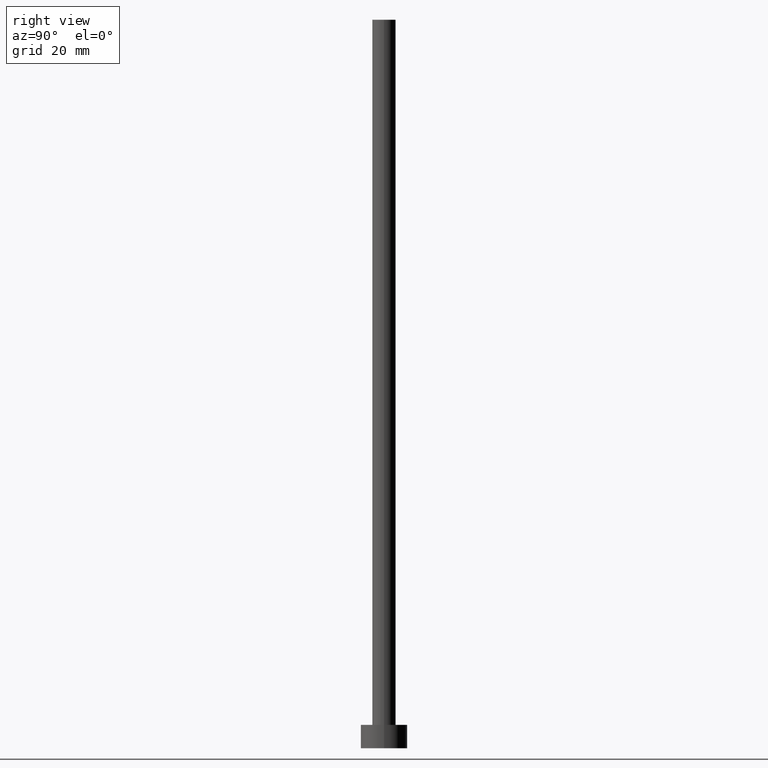
[diagram: clean part render]
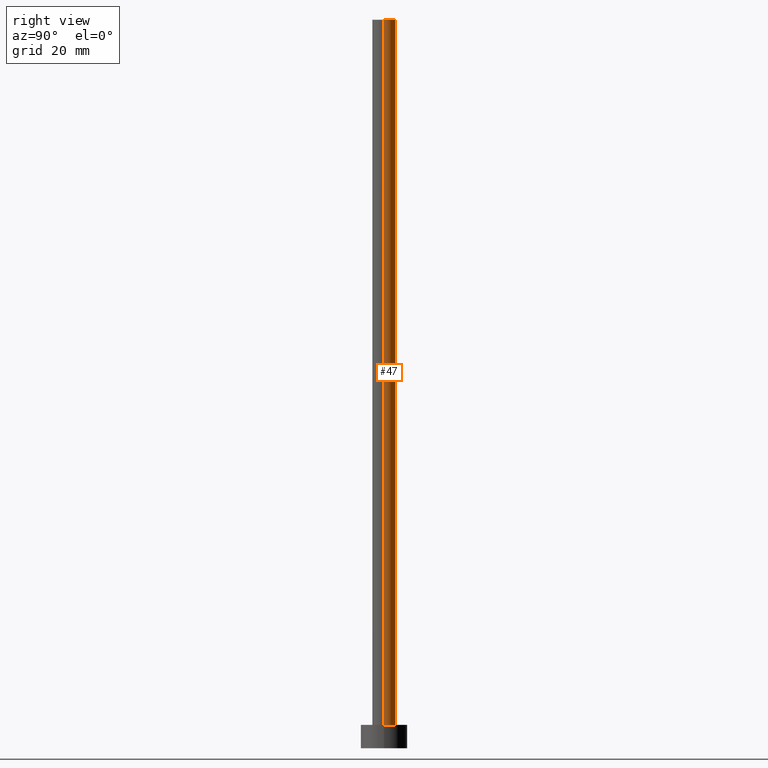
[diagram: same view with one face highlighted and labeled with its STEP entity id]
A machine part, right view. The second image highlights one B-rep face of the part: STEP entity #47.
In plain terms, the highlighted cylindrical surface (edge-blend (fillet) strip) has radius 2 mm, axis along (-0, -0, -1).
Its self-contained STEP definition (entity closure, byte-faithful):
#2 = VERTEX_POINT ( 'NONE', #146 ) ;
#8 = CARTESIAN_POINT ( 'NONE',  ( 2.000000000000000000, 2.449293598294706414E-16, 125.0000000000000000 ) ) ;
#11 = LINE ( 'NONE', #8, #114 ) ;
#12 = ORIENTED_EDGE ( 'NONE', *, *, #32, .F. ) ;
#32 = EDGE_CURVE ( 'NONE', #78, #2, #122, .T. ) ;
#33 = DIRECTION ( 'NONE',  ( -1.000000000000000000, 0.000000000000000000, 0.000000000000000000 ) ) ;
#41 = VERTEX_POINT ( 'NONE', #50 ) ;
#44 = CARTESIAN_POINT ( 'NONE',  ( 0.000000000000000000, 0.000000000000000000, 4.000000000000000000 ) ) ;
#47 = ADVANCED_FACE ( 'NONE', ( #209 ), #53, .T. ) ;
#50 = CARTESIAN_POINT ( 'NONE',  ( 2.000000000000000000, 2.449293598294706414E-16, 4.000000000000000000 ) ) ;
#51 = CIRCLE ( 'NONE', #192, 2.000000000000000000 ) ;
#53 = CYLINDRICAL_SURFACE ( 'NONE', #133, 2.000000000000000000 ) ;
#62 = DIRECTION ( 'NONE',  ( 1.000000000000000000, 0.000000000000000000, 0.000000000000000000 ) ) ;
#75 = EDGE_LOOP ( 'NONE', ( #12, #199, #184, #83 ) ) ;
#78 = VERTEX_POINT ( 'NONE', #171 ) ;
#83 = ORIENTED_EDGE ( 'NONE', *, *, #84, .F. ) ;
#84 = EDGE_CURVE ( 'NONE', #2, #242, #149, .T. ) ;
#111 = DIRECTION ( 'NONE',  ( 1.000000000000000000, 0.000000000000000000, 0.000000000000000000 ) ) ;
#114 = VECTOR ( 'NONE', #139, 1000.000000000000000 ) ;
#122 = CIRCLE ( 'NONE', #152, 2.000000000000000000 ) ;
#131 = CARTESIAN_POINT ( 'NONE',  ( 0.000000000000000000, 0.000000000000000000, 125.0000000000000000 ) ) ;
#133 = AXIS2_PLACEMENT_3D ( 'NONE', #191, #190, #33 ) ;
#135 = DIRECTION ( 'NONE',  ( 0.000000000000000000, 0.000000000000000000, 1.000000000000000000 ) ) ;
#139 = DIRECTION ( 'NONE',  ( -0.000000000000000000, -0.000000000000000000, -1.000000000000000000 ) ) ;
#140 = DIRECTION ( 'NONE',  ( 0.000000000000000000, 0.000000000000000000, 1.000000000000000000 ) ) ;
#146 = CARTESIAN_POINT ( 'NONE',  ( -2.000000000000000000, 0.000000000000000000, 125.0000000000000000 ) ) ;
#149 = LINE ( 'NONE', #253, #230 ) ;
#152 = AXIS2_PLACEMENT_3D ( 'NONE', #131, #135, #111 ) ;
#161 = CARTESIAN_POINT ( 'NONE',  ( -2.000000000000000000, 0.000000000000000000, 4.000000000000000000 ) ) ;
#171 = CARTESIAN_POINT ( 'NONE',  ( 2.000000000000000000, 2.449293598294706414E-16, 125.0000000000000000 ) ) ;
#172 = EDGE_CURVE ( 'NONE', #41, #242, #51, .T. ) ;
#184 = ORIENTED_EDGE ( 'NONE', *, *, #172, .T. ) ;
#190 = DIRECTION ( 'NONE',  ( -0.000000000000000000, -0.000000000000000000, -1.000000000000000000 ) ) ;
#191 = CARTESIAN_POINT ( 'NONE',  ( 0.000000000000000000, 0.000000000000000000, 125.0000000000000000 ) ) ;
#192 = AXIS2_PLACEMENT_3D ( 'NONE', #44, #140, #62 ) ;
#199 = ORIENTED_EDGE ( 'NONE', *, *, #225, .T. ) ;
#209 = FACE_OUTER_BOUND ( 'NONE', #75, .T. ) ;
#225 = EDGE_CURVE ( 'NONE', #78, #41, #11, .T. ) ;
#230 = VECTOR ( 'NONE', #251, 1000.000000000000000 ) ;
#242 = VERTEX_POINT ( 'NONE', #161 ) ;
#251 = DIRECTION ( 'NONE',  ( -0.000000000000000000, -0.000000000000000000, -1.000000000000000000 ) ) ;
#253 = CARTESIAN_POINT ( 'NONE',  ( -2.000000000000000000, 0.000000000000000000, 125.0000000000000000 ) ) ;